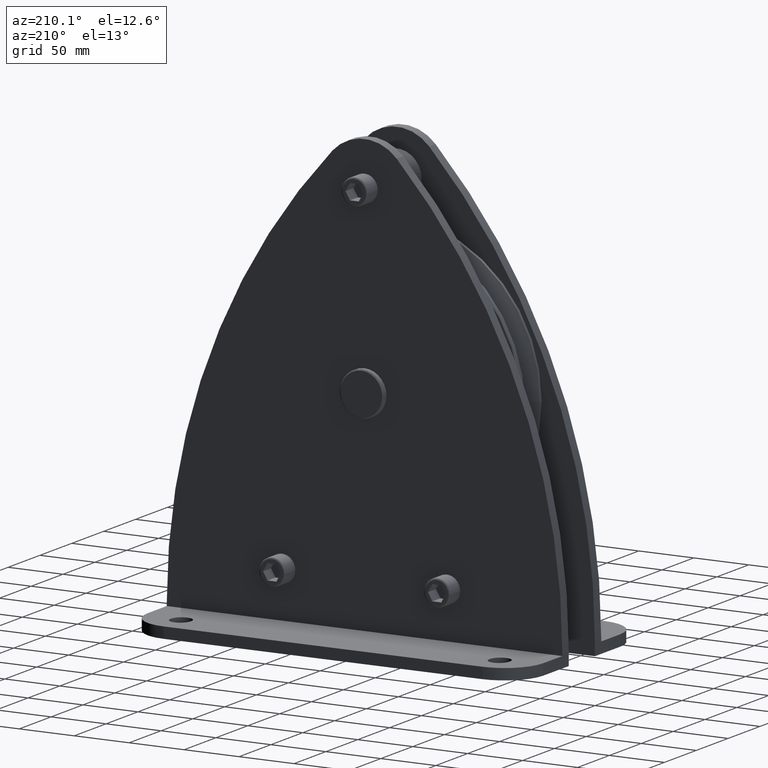
[diagram: clean part render]
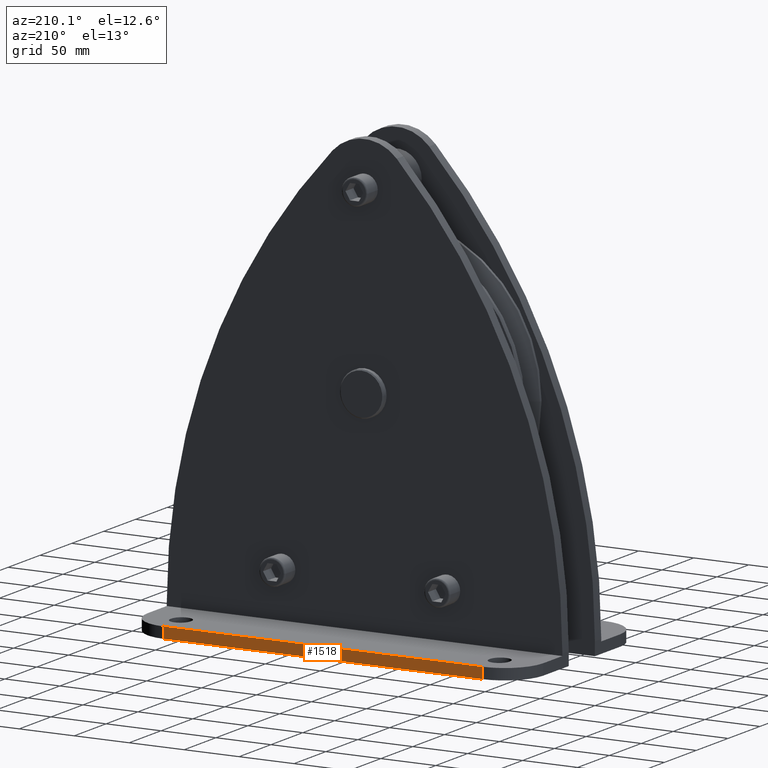
[diagram: same view with one face highlighted and labeled with its STEP entity id]
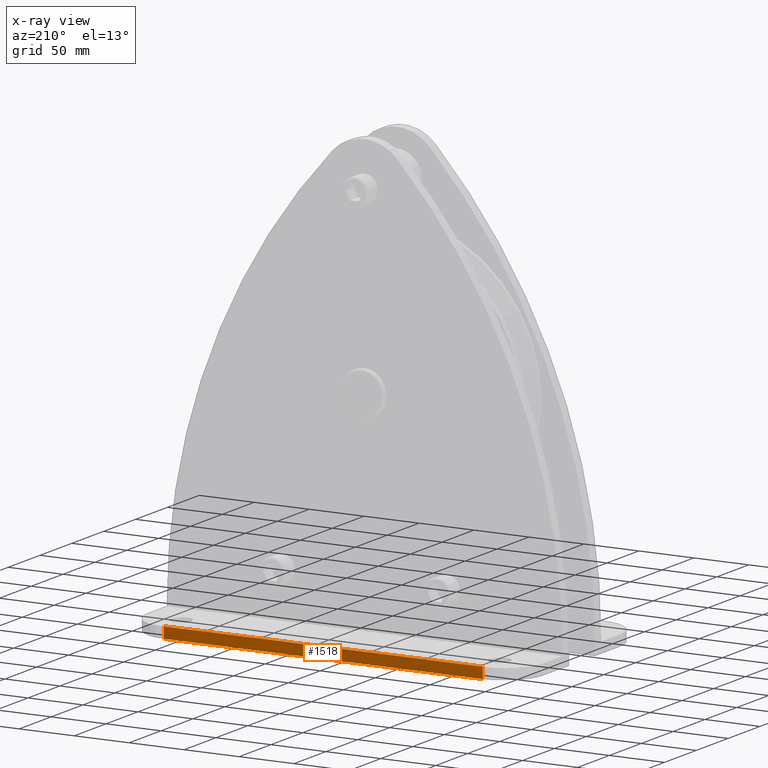
[diagram: x-ray of the same camera — body ghosted, the highlighted face saturated]
A machine part, auxiliary view. The second image highlights one B-rep face of the part: STEP entity #1518.
The next image is the same camera in x-ray: the body ghosted, the highlighted face saturated — about 0% of this face is hidden behind the body in this view.
In plain terms, the highlighted planar face has unit normal (0, 1, 0).
Its self-contained STEP definition (entity closure, byte-faithful):
#1518=ADVANCED_FACE('',(#3314),#3315,.T.);
#3314=FACE_OUTER_BOUND('',#5386,.T.);
#3315=PLANE('',#5387);
#5386=EDGE_LOOP('',(#10196,#10197,#10198,#10199));
#5387=AXIS2_PLACEMENT_3D('',#10200,#10201,#10202);
#10196=ORIENTED_EDGE('',*,*,#14122,.T.);
#10197=ORIENTED_EDGE('',*,*,#14125,.F.);
#10198=ORIENTED_EDGE('',*,*,#14107,.T.);
#10199=ORIENTED_EDGE('',*,*,#14127,.T.);
#10200=CARTESIAN_POINT('',(-3.80850906367414E-012,95.5,-202.0));
#10201=DIRECTION('',(0.0,1.0,0.0));
#10202=DIRECTION('',(-1.0,0.0,0.0));
#14107=EDGE_CURVE('',#17526,#17524,#17527,.T.);
#14122=EDGE_CURVE('',#17552,#17550,#17553,.T.);
#14125=EDGE_CURVE('',#17526,#17550,#17556,.T.);
#14127=EDGE_CURVE('',#17524,#17552,#17558,.T.);
#17524=VERTEX_POINT('',#25711);
#17526=VERTEX_POINT('',#25713);
#17527=LINE('',#25714,#25715);
#17550=VERTEX_POINT('',#25744);
#17552=VERTEX_POINT('',#25746);
#17553=LINE('',#25747,#25748);
#17556=LINE('',#25751,#25752);
#17558=LINE('',#25754,#25755);
#25711=CARTESIAN_POINT('',(-145.0,95.5,-202.0));
#25713=CARTESIAN_POINT('',(144.999999999992,95.5,-202.0));
#25714=CARTESIAN_POINT('',(145.0,95.5,-202.0));
#25715=VECTOR('',#30313,1.0);
#25744=CARTESIAN_POINT('',(144.999999999992,95.5,-192.0));
#25746=CARTESIAN_POINT('',(-145.0,95.5,-192.0));
#25747=CARTESIAN_POINT('',(145.0,95.5,-192.0));
#25748=VECTOR('',#30338,1.0);
#25751=CARTESIAN_POINT('',(144.999999999992,95.5,-202.0));
#25752=VECTOR('',#30342,1.0);
#25754=CARTESIAN_POINT('',(-145.0,95.5,-202.0));
#25755=VECTOR('',#30343,1.0);
#30313=DIRECTION('',(-1.0,0.0,0.0));
#30338=DIRECTION('',(1.0,0.0,-0.0));
#30342=DIRECTION('',(0.0,0.0,1.0));
#30343=DIRECTION('',(0.0,0.0,1.0));